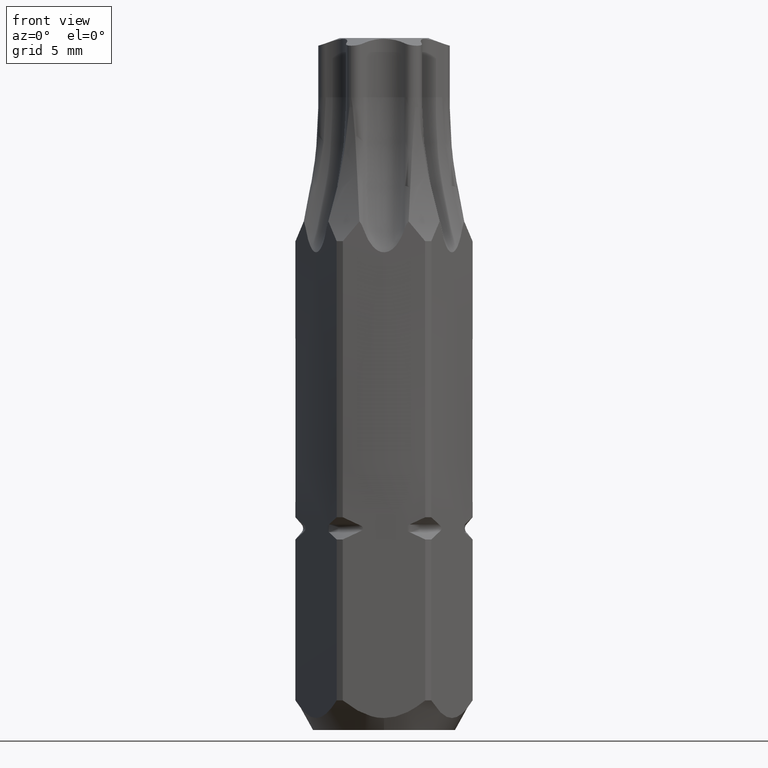
[diagram: clean part render]
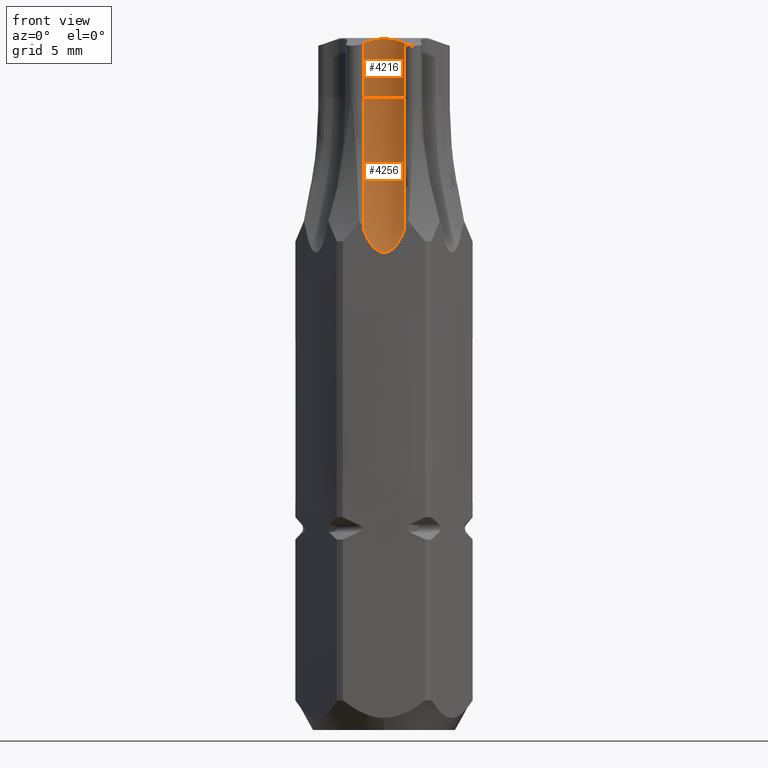
[diagram: same view with one multi-face feature highlighted, each face labeled with its STEP entity id]
A machine part, front view. The highlighted faces form ONE feature: a constant-radius fillet chain: 2 tangent blend faces with common blend radius 1.47 mm. The faces share edges in the B-rep.
Their STEP definitions:
[1] entity #4216 (Cylinder):
#2049=CARTESIAN_POINT('',(0.E0,-2.365E0,3.495696051980E1));
#2050=CARTESIAN_POINT('',(9.091247753343E-2,-2.365E0,3.495696051980E1));
#2051=CARTESIAN_POINT('',(2.753400528239E-1,-2.382070805188E0,
3.494679864733E1));
#2052=CARTESIAN_POINT('',(5.469459418545E-1,-2.460393553623E0,
3.490176003595E1));
#2053=CARTESIAN_POINT('',(8.106914107492E-1,-2.596450595448E0,
3.482854456145E1));
#2054=CARTESIAN_POINT('',(9.695608488727E-1,-2.725197540912E0,
3.476506991452E1));
#2055=CARTESIAN_POINT('',(1.042838034832E0,-2.798955197345E0,3.473060196263E1));
#2060=DIRECTION('',(0.E0,0.E0,-1.E0));
#2061=VECTOR('',#2060,2.730601962634E0);
#2062=CARTESIAN_POINT('',(-1.042838034832E0,-2.798955197345E0,
3.473060196263E1));
#2063=LINE('',#2062,#2061);
#2067=CARTESIAN_POINT('',(-1.042838034832E0,-2.798955197345E0,
3.473060196263E1));
#2068=CARTESIAN_POINT('',(-9.699002866306E-1,-2.725539204326E0,
3.476491025058E1));
#2069=CARTESIAN_POINT('',(-8.115790935390E-1,-2.596961076582E0,
3.482827344016E1));
#2070=CARTESIAN_POINT('',(-5.461495440323E-1,-2.459945298125E0,
3.490200143894E1));
#2071=CARTESIAN_POINT('',(-2.737208158012E-1,-2.381788600741E0,
3.494696765808E1));
#2072=CARTESIAN_POINT('',(-9.017319638952E-2,-2.365E0,3.495696051980E1));
#2073=CARTESIAN_POINT('',(0.E0,-2.365E0,3.495696051980E1));
#2090=DIRECTION('',(0.E0,0.E0,-1.E0));
#2091=VECTOR('',#2090,2.730601962634E0);
#2092=CARTESIAN_POINT('',(1.042838034832E0,-2.798955197345E0,3.473060196263E1));
#2093=LINE('',#2092,#2091);
#2133=CARTESIAN_POINT('',(0.E0,-3.835E0,3.2E1));
#2134=DIRECTION('',(0.E0,0.E0,-1.E0));
#2135=DIRECTION('',(-7.094136291372E-1,7.047923827585E-1,0.E0));
#2136=AXIS2_PLACEMENT_3D('',#2133,#2134,#2135);
#2873=CARTESIAN_POINT('',(-1.042838034832E0,-2.798955197345E0,3.2E1));
#2874=CARTESIAN_POINT('',(1.042838034832E0,-2.798955197345E0,3.2E1));
#2875=VERTEX_POINT('',#2873);
#2876=VERTEX_POINT('',#2874);
#2948=VERTEX_POINT('',#2049);
#2949=VERTEX_POINT('',#2055);
#2950=VERTEX_POINT('',#2067);
#4201=CARTESIAN_POINT('',(0.E0,-3.835E0,3.5E1));
#4202=DIRECTION('',(0.E0,0.E0,-1.E0));
#4203=DIRECTION('',(0.E0,-1.E0,0.E0));
#4204=AXIS2_PLACEMENT_3D('',#4201,#4202,#4203);
#4205=CYLINDRICAL_SURFACE('',#4204,1.47E0);
#4206=ORIENTED_EDGE('',*,*,#4149,.T.);
#4208=ORIENTED_EDGE('',*,*,#4207,.T.);
#4210=ORIENTED_EDGE('',*,*,#4209,.F.);
#4212=ORIENTED_EDGE('',*,*,#4211,.F.);
#4213=ORIENTED_EDGE('',*,*,#4174,.T.);
#4214=EDGE_LOOP('',(#4206,#4208,#4210,#4212,#4213));
#4215=FACE_OUTER_BOUND('',#4214,.F.);
#4216=ADVANCED_FACE('',(#4215),#4205,.F.);
#2056=B_SPLINE_CURVE_WITH_KNOTS('',3,(#2049,#2050,#2051,#2052,#2053,#2054,
#2055),.UNSPECIFIED.,.F.,.F.,(4,1,1,1,4),(0.E0,2.5E-1,5.E-1,7.5E-1,1.E0),
.UNSPECIFIED.);
#2074=B_SPLINE_CURVE_WITH_KNOTS('',3,(#2067,#2068,#2069,#2070,#2071,#2072,
#2073),.UNSPECIFIED.,.F.,.F.,(4,1,1,1,4),(0.E0,2.5E-1,5.E-1,7.5E-1,1.E0),
.UNSPECIFIED.);
#2137=CIRCLE('',#2136,1.47E0);
#4149=EDGE_CURVE('',#2948,#2949,#2056,.T.);
#4174=EDGE_CURVE('',#2950,#2948,#2074,.T.);
#4207=EDGE_CURVE('',#2949,#2876,#2093,.T.);
#4209=EDGE_CURVE('',#2875,#2876,#2137,.T.);
#4211=EDGE_CURVE('',#2950,#2875,#2063,.T.);
[2] entity #4256 (Torus):
#2109=CARTESIAN_POINT('',(1.042838034832E0,-2.2365E1,3.2E1));
#2110=DIRECTION('',(-1.E0,0.E0,0.E0));
#2111=DIRECTION('',(0.E0,1.E0,0.E0));
#2112=AXIS2_PLACEMENT_3D('',#2109,#2110,#2111);
#2125=CARTESIAN_POINT('',(-1.042838034832E0,-2.2365E1,3.2E1));
#2126=DIRECTION('',(-1.E0,0.E0,0.E0));
#2127=DIRECTION('',(0.E0,1.E0,0.E0));
#2128=AXIS2_PLACEMENT_3D('',#2125,#2126,#2127);
#2133=CARTESIAN_POINT('',(0.E0,-3.835E0,3.2E1));
#2134=DIRECTION('',(0.E0,0.E0,-1.E0));
#2135=DIRECTION('',(-7.094136291372E-1,7.047923827585E-1,0.E0));
#2136=AXIS2_PLACEMENT_3D('',#2133,#2134,#2135);
#2141=CARTESIAN_POINT('',(-1.042838034832E0,-3.965E0,2.534642132236E1));
#2142=CARTESIAN_POINT('',(-1.014641367489E0,-3.965E0,2.526296027052E1));
#2143=CARTESIAN_POINT('',(-9.563873779829E-1,-3.965E0,2.510719754384E1));
#2144=CARTESIAN_POINT('',(-8.676442686852E-1,-3.965E0,2.491024521947E1));
#2145=CARTESIAN_POINT('',(-7.741872542025E-1,-3.965E0,2.473718313049E1));
#2146=CARTESIAN_POINT('',(-6.734328022576E-1,-3.965E0,2.458296866677E1));
#2147=CARTESIAN_POINT('',(-5.584669442303E-1,-3.965E0,2.444110315242E1));
#2148=CARTESIAN_POINT('',(-4.228551120536E-1,-3.965E0,2.431406973478E1));
#2149=CARTESIAN_POINT('',(-2.638049161374E-1,-3.965E0,2.421373210521E1));
#2150=CARTESIAN_POINT('',(-8.390217832855E-2,-3.965E0,2.415766008056E1));
#2151=CARTESIAN_POINT('',(1.036898007794E-1,-3.965E0,2.416100958662E1));
#2152=CARTESIAN_POINT('',(2.811556104213E-1,-3.965E0,2.422236884354E1));
#2153=CARTESIAN_POINT('',(4.373152905654E-1,-3.965E0,2.432573642478E1));
#2154=CARTESIAN_POINT('',(5.703751842327E-1,-3.965E0,2.445433704738E1));
#2155=CARTESIAN_POINT('',(6.823703003446E-1,-3.965E0,2.459561453913E1));
#2156=CARTESIAN_POINT('',(7.806041589517E-1,-3.965E0,2.474828149494E1));
#2157=CARTESIAN_POINT('',(8.716467981654E-1,-3.965E0,2.491865415378E1));
#2158=CARTESIAN_POINT('',(9.582229895881E-1,-3.965E0,2.511196204308E1));
#2159=CARTESIAN_POINT('',(1.015214826370E0,-3.965E0,2.526465768678E1));
#2160=CARTESIAN_POINT('',(1.042838034832E0,-3.965E0,2.534642132236E1));
#2873=CARTESIAN_POINT('',(-1.042838034832E0,-2.798955197345E0,3.2E1));
#2874=CARTESIAN_POINT('',(1.042838034832E0,-2.798955197345E0,3.2E1));
#2875=VERTEX_POINT('',#2873);
#2876=VERTEX_POINT('',#2874);
#3065=CARTESIAN_POINT('',(-1.042838034832E0,-3.965E0,2.534642132236E1));
#3066=VERTEX_POINT('',#3065);
#3067=CARTESIAN_POINT('',(1.042838034832E0,-3.965E0,2.534642132236E1));
#3068=VERTEX_POINT('',#3067);
#4244=CARTESIAN_POINT('',(0.E0,-2.2365E1,3.2E1));
#4245=DIRECTION('',(-1.E0,0.E0,0.E0));
#4246=DIRECTION('',(0.E0,-1.E0,0.E0));
#4247=AXIS2_PLACEMENT_3D('',#4244,#4245,#4246);
#4248=TOROIDAL_SURFACE('',#4247,1.853E1,1.47E0);
#4250=ORIENTED_EDGE('',*,*,#4249,.F.);
#4251=ORIENTED_EDGE('',*,*,#4209,.T.);
#4252=ORIENTED_EDGE('',*,*,#4237,.T.);
#4253=ORIENTED_EDGE('',*,*,#3848,.F.);
#4254=EDGE_LOOP('',(#4250,#4251,#4252,#4253));
#4255=FACE_OUTER_BOUND('',#4254,.F.);
#4256=ADVANCED_FACE('',(#4255),#4248,.F.);
#2113=CIRCLE('',#2112,1.956604480265E1);
#2129=CIRCLE('',#2128,1.956604480265E1);
#2137=CIRCLE('',#2136,1.47E0);
#2161=B_SPLINE_CURVE_WITH_KNOTS('',3,(#2141,#2142,#2143,#2144,#2145,#2146,#2147,
#2148,#2149,#2150,#2151,#2152,#2153,#2154,#2155,#2156,#2157,#2158,#2159,#2160),
.UNSPECIFIED.,.F.,.F.,(4,1,1,1,1,1,1,1,1,1,1,1,1,1,1,1,1,4),(0.E0,
5.882352941176E-2,1.176470588235E-1,1.764705882353E-1,2.352941176471E-1,
2.941176470588E-1,3.529411764706E-1,4.117647058824E-1,4.705882352941E-1,
5.294117647059E-1,5.882352941176E-1,6.470588235294E-1,7.058823529412E-1,
7.647058823529E-1,8.235294117647E-1,8.823529411765E-1,9.411764705882E-1,1.E0),
.UNSPECIFIED.);
#3848=EDGE_CURVE('',#3066,#3068,#2161,.T.);
#4209=EDGE_CURVE('',#2875,#2876,#2137,.T.);
#4237=EDGE_CURVE('',#2876,#3068,#2113,.T.);
#4249=EDGE_CURVE('',#2875,#3066,#2129,.T.);